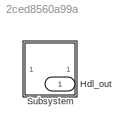
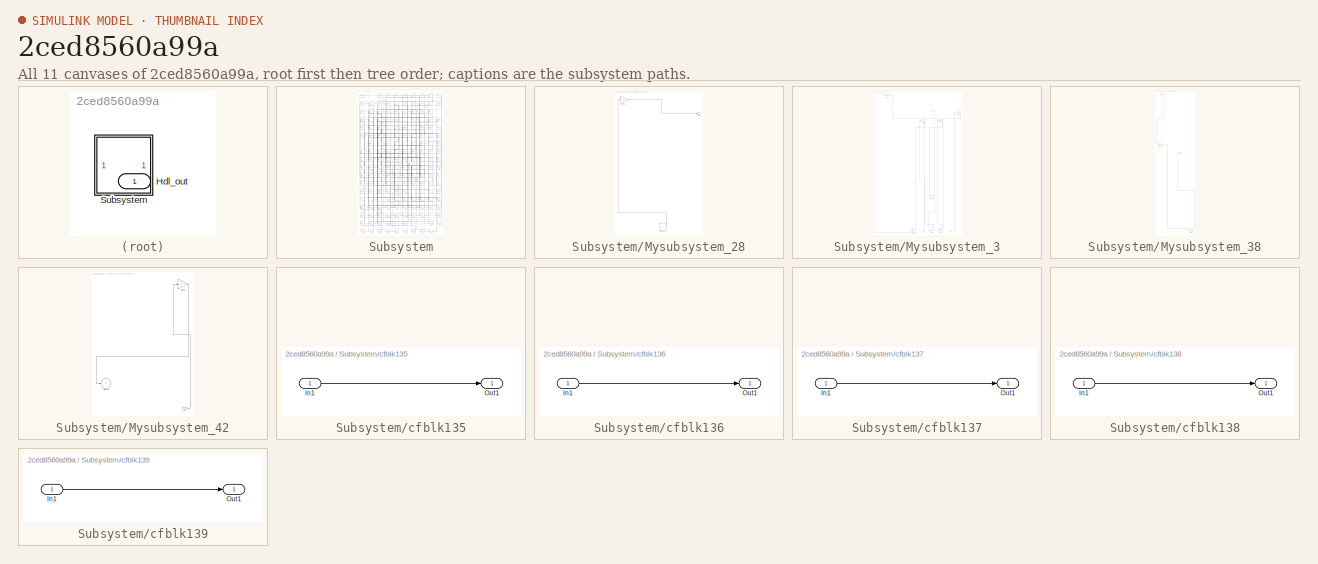
[diagram: thumbnail index - all 11 canvases of the model, root first then tree order]
MODEL slx_2ced8560a99a
KIND model
CONFIG AbsTol = auto
CONFIG EnableMultiTasking = off
CONFIG FixedStep = auto
CONFIG MaxStep = auto
CONFIG MinStep = auto
CONFIG RelTol = 1e-3
CONFIG SampleTimeConstraint = Unconstrained
CONFIG SolverName = VariableStepAuto
CONFIG StartTime = 0.0
CONFIG StopTime = 10.0
BLOCK [Outport] Hdl_out
  OutDataTypeStr = uint8
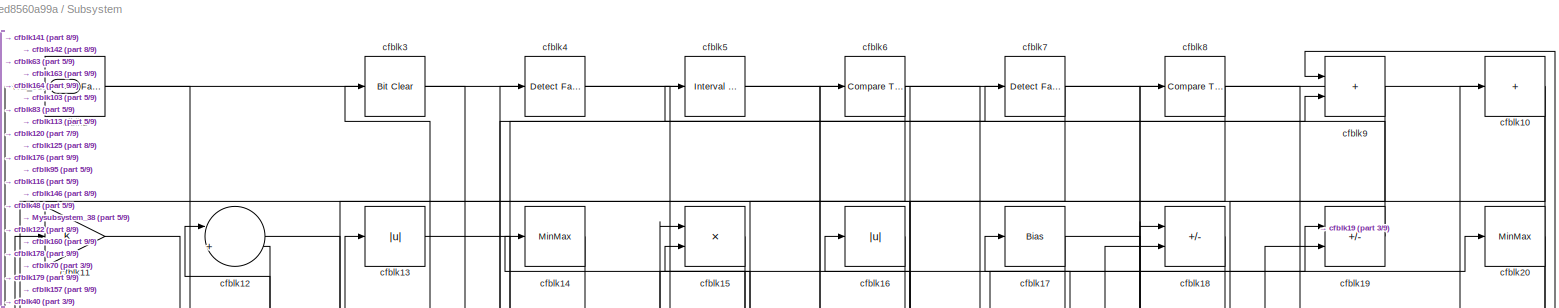
[diagram: Subsystem - part 1/9, full width, top band]
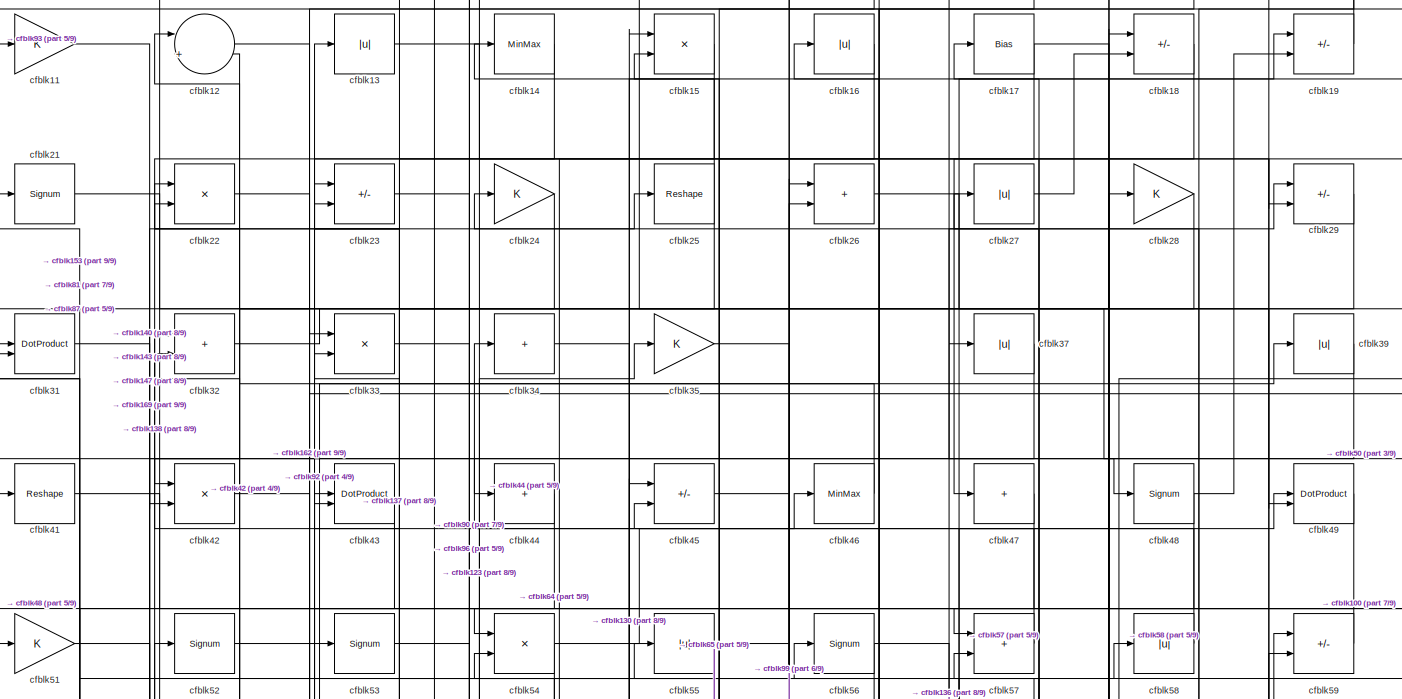
[diagram: Subsystem - part 2/9, full width, top band]
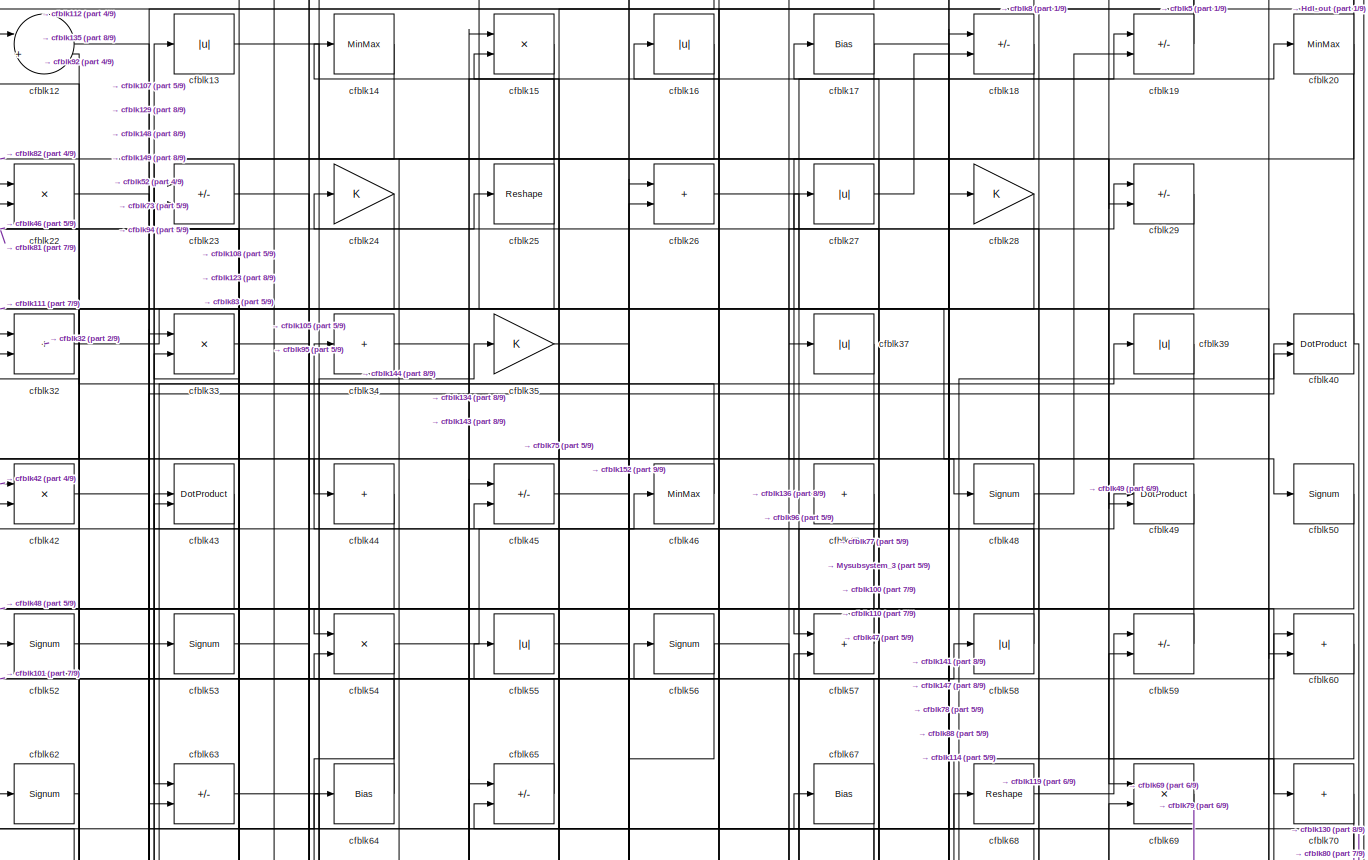
[diagram: Subsystem - part 3/9, full width, top band]
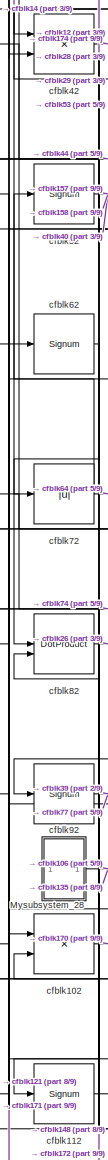
[diagram: Subsystem - part 4/9, middle left region]
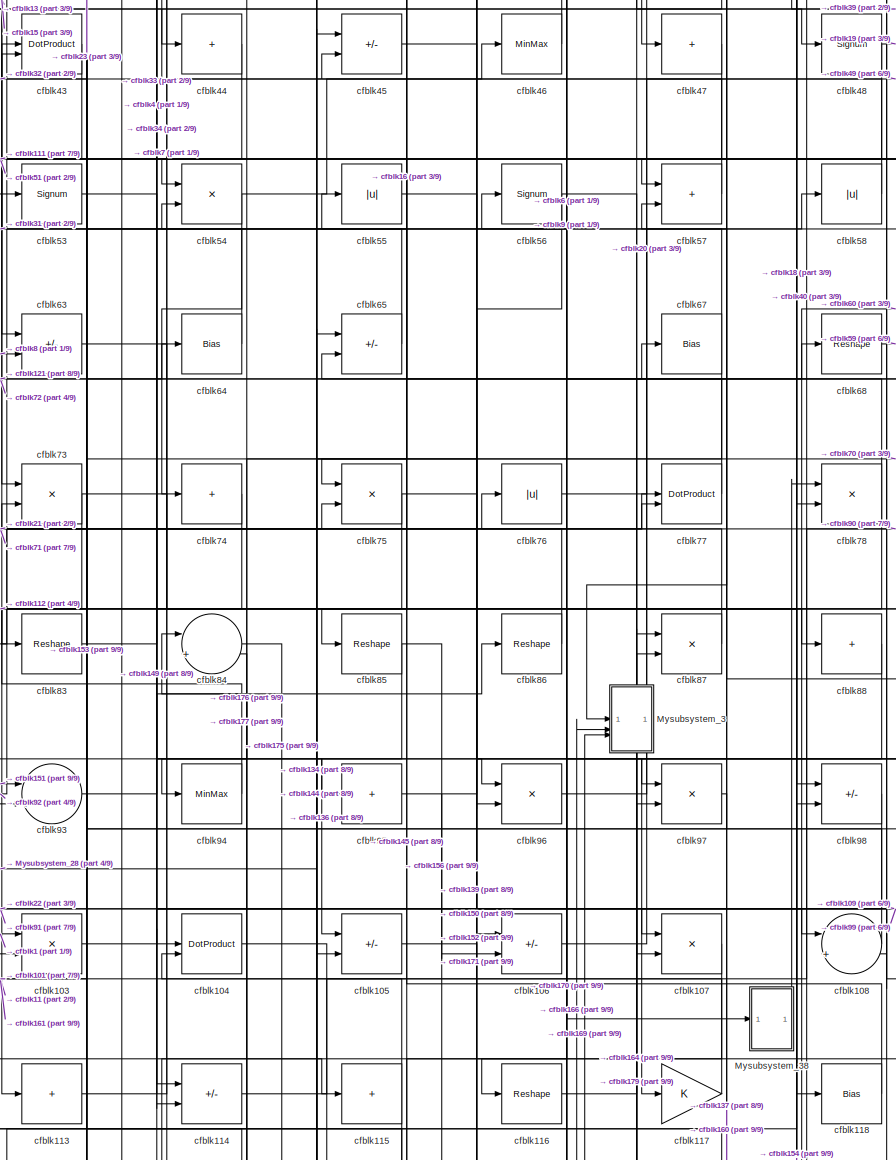
[diagram: Subsystem - part 5/9, central region]
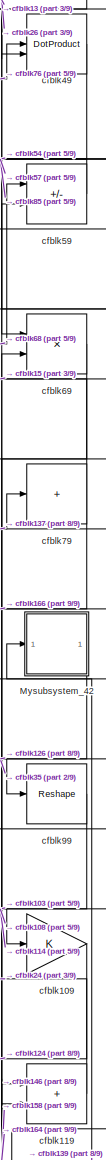
[diagram: Subsystem - part 6/9, middle right region]
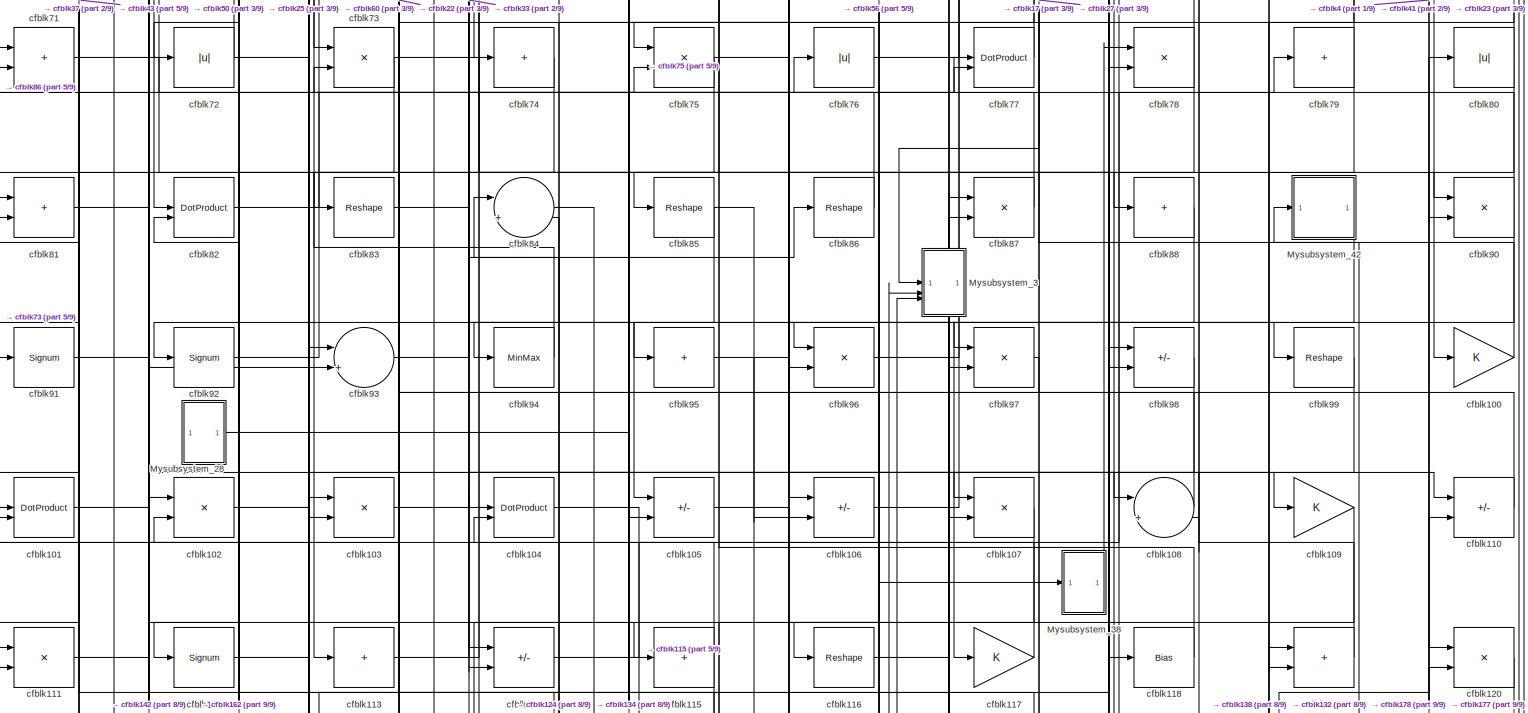
[diagram: Subsystem - part 7/9, full width, middle band]
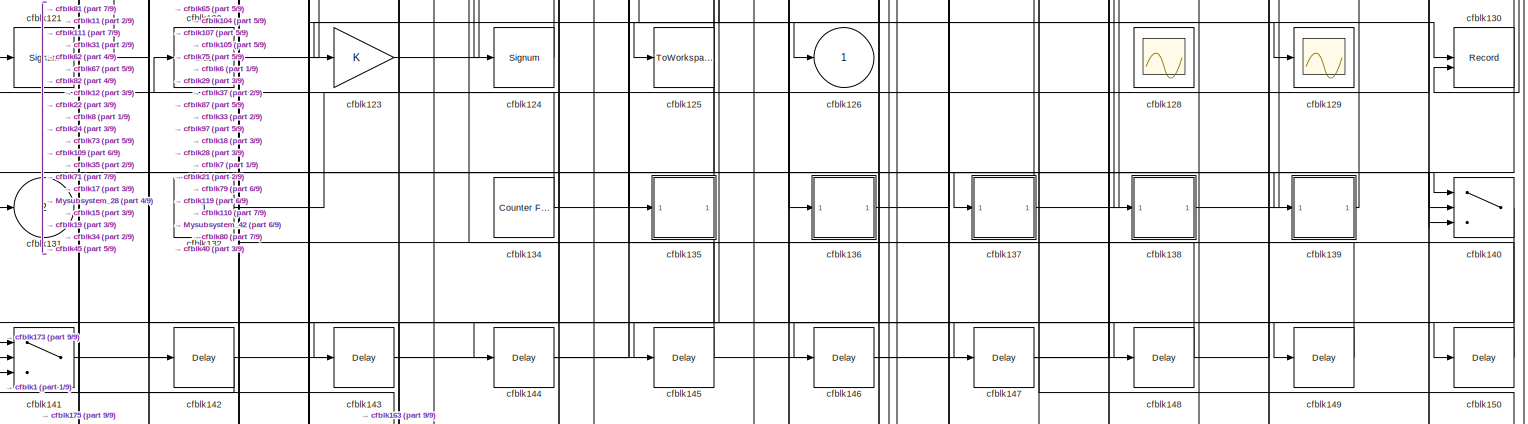
[diagram: Subsystem - part 8/9, full width, bottom band]
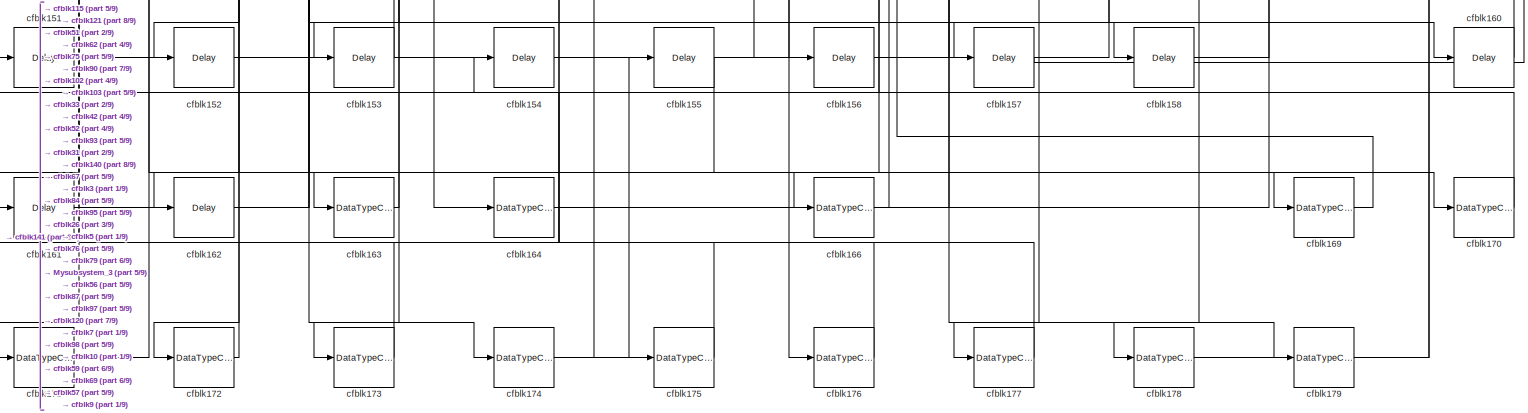
[diagram: Subsystem - part 9/9, full width, bottom band]
BLOCK [SubSystem] Subsystem
BLOCK [Outport] Subsystem/Hdl_out
  OutDataTypeStr = uint8
  Port = 3
BLOCK [SubSystem] Subsystem/Mysubsystem_28
  RTWFcnName = Mysubsystem_28
  RTWFcnNameOpts = User specified
  RTWFileNameOpts = Use function name
  RTWSystemCode = Reusable function
  TreatAsAtomicUnit = on
BLOCK [Outport] Subsystem/Mysubsystem_28/Out1
BLOCK [Constant] Subsystem/Mysubsystem_28/cfblk133
  SampleTime = -1
BLOCK [Gain] Subsystem/Mysubsystem_28/cfblk61
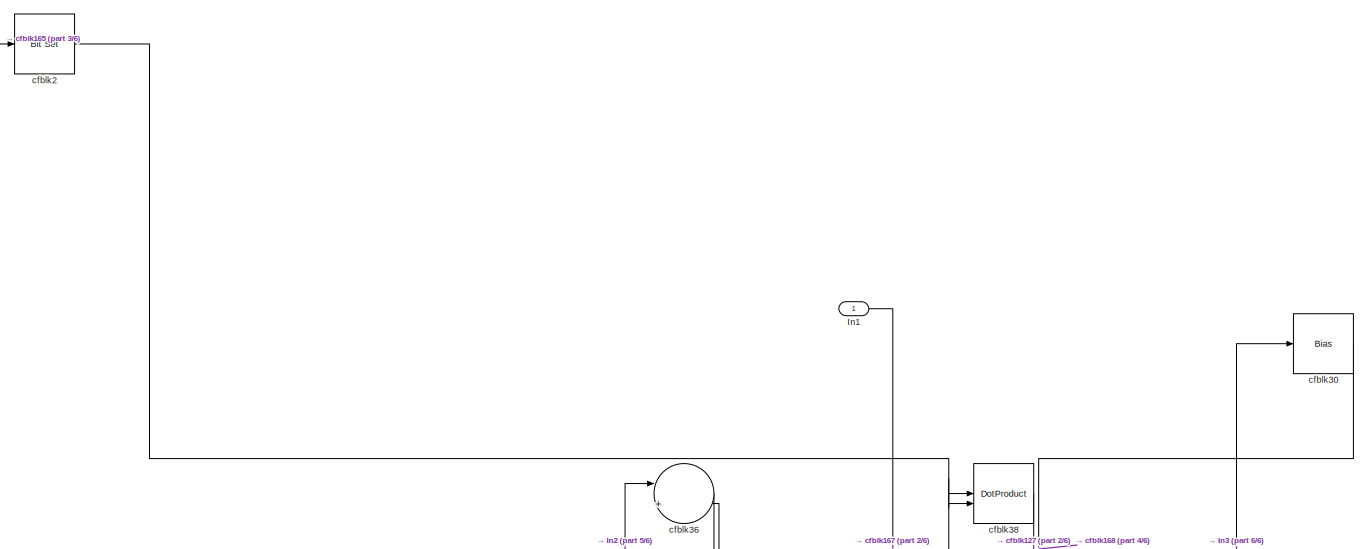
[diagram: Subsystem/Mysubsystem_3 - part 1/6, full width, top band]
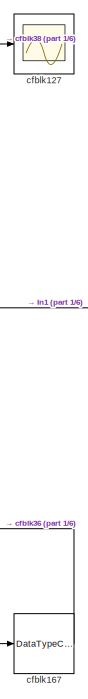
[diagram: Subsystem/Mysubsystem_3 - part 2/6, bottom center region]
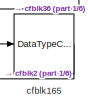
[diagram: Subsystem/Mysubsystem_3 - part 3/6, bottom center region]
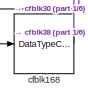
[diagram: Subsystem/Mysubsystem_3 - part 4/6, bottom right region]
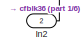
[diagram: Subsystem/Mysubsystem_3 - part 5/6, bottom center region]
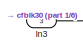
[diagram: Subsystem/Mysubsystem_3 - part 6/6, bottom right region]
BLOCK [SubSystem] Subsystem/Mysubsystem_3
  RTWFcnName = Mysubsystem_3
  RTWFcnNameOpts = User specified
  RTWFileNameOpts = Use function name
  RTWSystemCode = Reusable function
  TreatAsAtomicUnit = on
BLOCK [Inport] Subsystem/Mysubsystem_3/In1
BLOCK [Inport] Subsystem/Mysubsystem_3/In2
  Port = 2
BLOCK [Inport] Subsystem/Mysubsystem_3/In3
  Port = 3
BLOCK [Scope] Subsystem/Mysubsystem_3/cfblk127
  Floating = off
  NumInputPorts = 1
  ScopeSpecificationString = Simulink.scopes.TimeScopeBlockCfg('CurrentConfiguration', extmgr.ConfigurationSet(extmgr.Configuration('Core','General UI',true),extmgr.Configuration('Core','Source UI',true),extmgr.Configuration('Sources','WiredSimulink',true,'DataLoggingVariableName','ScopeData2','DataLoggingSaveFormat','Array','DataLoggingLimitDataPoints',true,'DataLoggingDecimation','1'),extmgr.Configuration('Visuals','Time Do...<+868ch>
BLOCK [DataTypeConversion] Subsystem/Mysubsystem_3/cfblk165
  OutDataTypeStr = uint8
  RndMeth = Floor
  SaturateOnIntegerOverflow = off
BLOCK [DataTypeConversion] Subsystem/Mysubsystem_3/cfblk167
  OutDataTypeStr = uint8
  RndMeth = Floor
  SaturateOnIntegerOverflow = off
BLOCK [DataTypeConversion] Subsystem/Mysubsystem_3/cfblk168
  OutDataTypeStr = uint8
  RndMeth = Floor
  SaturateOnIntegerOverflow = off
BLOCK [Reference] Subsystem/Mysubsystem_3/cfblk2  REF=simulink/Logic and Bit
Operations/Bit Set
  LibrarySourceBlock = hdlsllib/Logic and Bit\nOperations/Bit Set
  SourceBlock = simulink/Logic and Bit\nOperations/Bit Set
  SourceType = Bit Set
BLOCK [Bias] Subsystem/Mysubsystem_3/cfblk30
  Bias = 0.0
  SaturateOnIntegerOverflow = off
BLOCK [Sum] Subsystem/Mysubsystem_3/cfblk36
  Inputs = |++
BLOCK [DotProduct] Subsystem/Mysubsystem_3/cfblk38
  OutDataTypeStr = Inherit: Inherit via internal rule
BLOCK [SubSystem] Subsystem/Mysubsystem_38
  RTWFcnName = Mysubsystem_38
  RTWFcnNameOpts = User specified
  RTWFileNameOpts = Use function name
  RTWSystemCode = Reusable function
  TreatAsAtomicUnit = on
BLOCK [Inport] Subsystem/Mysubsystem_38/In1
BLOCK [Outport] Subsystem/Mysubsystem_38/Out1
BLOCK [Delay] Subsystem/Mysubsystem_38/cfblk159
  InputPortMap = u0
  SampleTime = 1
BLOCK [MinMax] Subsystem/Mysubsystem_38/cfblk66
BLOCK [SubSystem] Subsystem/Mysubsystem_42
  RTWFcnName = Mysubsystem_42
  RTWFcnNameOpts = User specified
  RTWFileNameOpts = Use function name
  RTWSystemCode = Reusable function
  TreatAsAtomicUnit = on
BLOCK [Inport] Subsystem/Mysubsystem_42/In1
BLOCK [Outport] Subsystem/Mysubsystem_42/cfblk126
  VectorParamsAs1DForOutWhenUnconnected = off
BLOCK [Gain] Subsystem/Mysubsystem_42/cfblk89
BLOCK [Reference] Subsystem/cfblk1  REF=hdlsllib/Logic and Bit
Operations/Detect Fall
Nonpositive
  SourceBlock = hdlsllib/Logic and Bit\nOperations/Detect Fall\nNonpositive
  SourceType = Detect Fall Nonpositive
BLOCK [Sum] Subsystem/cfblk10
  IconShape = rectangular
  Inputs = +
  OutDataTypeStr = uint8
BLOCK [Gain] Subsystem/cfblk100
  OutDataTypeStr = uint8
BLOCK [DotProduct] Subsystem/cfblk101
  OutDataTypeStr = uint8
BLOCK [Product] Subsystem/cfblk102
  Inputs = */
  OutDataTypeStr = uint8
  RndMeth = Zero
  SaturateOnIntegerOverflow = on
BLOCK [Product] Subsystem/cfblk103
  Inputs = */
  OutDataTypeStr = uint8
  RndMeth = Zero
  SaturateOnIntegerOverflow = on
BLOCK [DotProduct] Subsystem/cfblk104
  OutDataTypeStr = uint8
BLOCK [Sum] Subsystem/cfblk105
  IconShape = rectangular
  Inputs = +-
  OutDataTypeStr = uint8
BLOCK [Sum] Subsystem/cfblk106
  IconShape = rectangular
  Inputs = +-
  OutDataTypeStr = uint8
BLOCK [Product] Subsystem/cfblk107
  Inputs = */
  OutDataTypeStr = uint8
  RndMeth = Zero
  SaturateOnIntegerOverflow = on
BLOCK [Sum] Subsystem/cfblk108
  Inputs = |++
  OutDataTypeStr = uint8
BLOCK [Gain] Subsystem/cfblk109
  OutDataTypeStr = uint8
BLOCK [Gain] Subsystem/cfblk11
  OutDataTypeStr = uint8
BLOCK [Sum] Subsystem/cfblk110
  IconShape = rectangular
  Inputs = +-
  OutDataTypeStr = uint8
BLOCK [Product] Subsystem/cfblk111
  Inputs = */
  OutDataTypeStr = uint8
  RndMeth = Zero
  SaturateOnIntegerOverflow = on
BLOCK [Signum] Subsystem/cfblk112
BLOCK [Sum] Subsystem/cfblk113
  IconShape = rectangular
  Inputs = +
  OutDataTypeStr = uint8
BLOCK [Sum] Subsystem/cfblk114
  IconShape = rectangular
  Inputs = +-
  OutDataTypeStr = uint8
BLOCK [Sum] Subsystem/cfblk115
  IconShape = rectangular
  Inputs = +
  OutDataTypeStr = uint8
BLOCK [Reshape] Subsystem/cfblk116
BLOCK [Gain] Subsystem/cfblk117
  OutDataTypeStr = uint8
BLOCK [Bias] Subsystem/cfblk118
  Bias = 0.0
  SaturateOnIntegerOverflow = off
BLOCK [Sum] Subsystem/cfblk119
  IconShape = rectangular
  OutDataTypeStr = uint8
BLOCK [Sum] Subsystem/cfblk12
  Inputs = |++
  OutDataTypeStr = uint8
BLOCK [Product] Subsystem/cfblk120
  Inputs = */
  OutDataTypeStr = uint8
  RndMeth = Zero
  SaturateOnIntegerOverflow = on
BLOCK [Signum] Subsystem/cfblk121
BLOCK [Bias] Subsystem/cfblk122
  Bias = 0.0
  SaturateOnIntegerOverflow = off
BLOCK [Gain] Subsystem/cfblk123
  OutDataTypeStr = uint8
BLOCK [Signum] Subsystem/cfblk124
BLOCK [ToWorkspace] Subsystem/cfblk125
  MaxDataPoints = inf
  SampleTime = -1
  SaveFormat = Timeseries
  VariableName = simout
BLOCK [Outport] Subsystem/cfblk126
  OutDataTypeStr = uint8
  VectorParamsAs1DForOutWhenUnconnected = off
BLOCK [Scope] Subsystem/cfblk128
  Floating = on
  NumInputPorts = 1
  ScopeSpecificationString = Simulink.scopes.TimeScopeBlockCfg('CurrentConfiguration', extmgr.ConfigurationSet(extmgr.Configuration('Core','General UI',true,'FigureColor',[0.156862745098039 0.156862745098039 0.156862745098039]),extmgr.Configuration('Core','Source UI',true),extmgr.Configuration('Sources','WiredSimulink',true,'DataLoggingVariableName','ScopeData1','DataLoggingSaveFormat','StructureWithTime','DataLoggingLimitDat...<+2713ch>
BLOCK [Scope] Subsystem/cfblk129
  Floating = off
  NumInputPorts = 1
  ScopeSpecificationString = Simulink.scopes.TimeScopeBlockCfg('CurrentConfiguration', extmgr.ConfigurationSet(extmgr.Configuration('Core','General UI',true),extmgr.Configuration('Core','Source UI',true),extmgr.Configuration('Sources','WiredSimulink',true,'DataLoggingVariableName','ScopeData2','DataLoggingSaveFormat','Array','DataLoggingLimitDataPoints',true,'DataLoggingDecimation','1'),extmgr.Configuration('Visuals','Time Do...<+868ch>
BLOCK [Abs] Subsystem/cfblk13
  OutDataTypeStr = uint8
  SaturateOnIntegerOverflow = off
BLOCK [Record] Subsystem/cfblk130
  CompatibilityTag = XY
  FileSettingsInternal = {"entries":[{"content":{"excelSettings":{"content":{},"type":"Streamout.ExcelSettings"}},"type":"Streamout.FileSettingStorage","uuid":""}],"packageUris":["http:\/\/schema.mathworks.com\/mf0\/streamout_blocks\/R2020a"],"version":"1.0"}
  Layout = [1 1]
  SignalsInternal = {"entries":[{"content":{"signals":[{"content":{"blockPath":[],"dimensions":[1],"domain":"","lineColor":"#a2142f","plots":[1],"port":1,"signalID":52189,"signalName":"cfblk34"},"type":"RecordBlkView.Signal","uuid":""},{"content":{"blockPath":[],"dimensions":[1],"domain":"","lineColor":"#139fff","plots":[1],"port":2,"signalID":52192,"signalName":"cfblk40"},"type":"RecordBlkView.Signal","uuid":""}]},"...<+142ch>
  VisualizationBindings = {"xyplotplugin":{"info":[{"series":[{"bindingParametersList":[{"parameter":"X-Axis","signalID":52189,"signalName":"cfblk34"},{"parameter":"Y-Axis","signalID":52192,"signalName":"cfblk40"}],"seriesID":1677}],"subplotID":1}]}}
  st = -1
BLOCK [Outport] Subsystem/cfblk131
  OutDataTypeStr = uint8
  Port = 2
  VectorParamsAs1DForOutWhenUnconnected = off
BLOCK [Constant] Subsystem/cfblk132
  OutDataTypeStr = uint8
  SampleTime = -1
BLOCK [Reference] Subsystem/cfblk134  REF=hdlsllib/Sources/Counter
Free-Running
  SourceBlock = hdlsllib/Sources/Counter\nFree-Running
  SourceType = Counter Free-Running
BLOCK [SubSystem] Subsystem/cfblk135
  LibrarySourceBlock = hdlsllib/Ports &\nSubsystems/Subsystem
BLOCK [Inport] Subsystem/cfblk135/In1
BLOCK [Outport] Subsystem/cfblk135/Out1
BLOCK [SubSystem] Subsystem/cfblk136
  LibrarySourceBlock = hdlsllib/Ports &\nSubsystems/Subsystem
BLOCK [Inport] Subsystem/cfblk136/In1
BLOCK [Outport] Subsystem/cfblk136/Out1
BLOCK [SubSystem] Subsystem/cfblk137
  LibrarySourceBlock = hdlsllib/Ports &\nSubsystems/Subsystem
BLOCK [Inport] Subsystem/cfblk137/In1
BLOCK [Outport] Subsystem/cfblk137/Out1
BLOCK [SubSystem] Subsystem/cfblk138
  LibrarySourceBlock = hdlsllib/Ports &\nSubsystems/Subsystem
BLOCK [Inport] Subsystem/cfblk138/In1
BLOCK [Outport] Subsystem/cfblk138/Out1
BLOCK [SubSystem] Subsystem/cfblk139
  LibrarySourceBlock = hdlsllib/Ports &\nSubsystems/Subsystem
BLOCK [Inport] Subsystem/cfblk139/In1
BLOCK [Outport] Subsystem/cfblk139/Out1
BLOCK [MinMax] Subsystem/cfblk14
  OutDataTypeStr = uint8
BLOCK [Switch] Subsystem/cfblk140
  InputSameDT = off
  OutDataTypeStr = uint8
  SaturateOnIntegerOverflow = off
BLOCK [Switch] Subsystem/cfblk141
  InputSameDT = off
  OutDataTypeStr = uint8
  SaturateOnIntegerOverflow = off
BLOCK [Delay] Subsystem/cfblk142
  InputPortMap = u0
  SampleTime = 1
BLOCK [Delay] Subsystem/cfblk143
  InputPortMap = u0
  SampleTime = 1
BLOCK [Delay] Subsystem/cfblk144
  InputPortMap = u0
  SampleTime = 1
BLOCK [Delay] Subsystem/cfblk145
  InputPortMap = u0
  SampleTime = 1
BLOCK [Delay] Subsystem/cfblk146
  InputPortMap = u0
  SampleTime = 1
BLOCK [Delay] Subsystem/cfblk147
  InputPortMap = u0
  SampleTime = 1
BLOCK [Delay] Subsystem/cfblk148
  InputPortMap = u0
  SampleTime = 1
BLOCK [Delay] Subsystem/cfblk149
  InputPortMap = u0
  SampleTime = 1
BLOCK [Product] Subsystem/cfblk15
  Inputs = */
  OutDataTypeStr = uint8
  RndMeth = Zero
  SaturateOnIntegerOverflow = on
BLOCK [Delay] Subsystem/cfblk150
  InputPortMap = u0
  SampleTime = 1
BLOCK [Delay] Subsystem/cfblk151
  InputPortMap = u0
  SampleTime = 1
BLOCK [Delay] Subsystem/cfblk152
  InputPortMap = u0
  SampleTime = 1
BLOCK [Delay] Subsystem/cfblk153
  InputPortMap = u0
  SampleTime = 1
BLOCK [Delay] Subsystem/cfblk154
  InputPortMap = u0
  SampleTime = 1
BLOCK [Delay] Subsystem/cfblk155
  InputPortMap = u0
  SampleTime = 1
BLOCK [Delay] Subsystem/cfblk156
  InputPortMap = u0
  SampleTime = 1
BLOCK [Delay] Subsystem/cfblk157
  InputPortMap = u0
  SampleTime = 1
BLOCK [Delay] Subsystem/cfblk158
  InputPortMap = u0
  SampleTime = 1
BLOCK [Abs] Subsystem/cfblk16
  OutDataTypeStr = uint8
  SaturateOnIntegerOverflow = off
BLOCK [Delay] Subsystem/cfblk160
  InputPortMap = u0
  SampleTime = 1
BLOCK [Delay] Subsystem/cfblk161
  InputPortMap = u0
  SampleTime = 1
BLOCK [Delay] Subsystem/cfblk162
  InputPortMap = u0
  SampleTime = 1
BLOCK [DataTypeConversion] Subsystem/cfblk163
  OutDataTypeStr = uint8
  RndMeth = Floor
  SaturateOnIntegerOverflow = off
BLOCK [DataTypeConversion] Subsystem/cfblk164
  OutDataTypeStr = uint8
  RndMeth = Floor
  SaturateOnIntegerOverflow = off
BLOCK [DataTypeConversion] Subsystem/cfblk166
  OutDataTypeStr = uint8
  RndMeth = Floor
  SaturateOnIntegerOverflow = off
BLOCK [DataTypeConversion] Subsystem/cfblk169
  OutDataTypeStr = uint8
  RndMeth = Floor
  SaturateOnIntegerOverflow = off
BLOCK [Bias] Subsystem/cfblk17
  Bias = 0.0
  SaturateOnIntegerOverflow = off
BLOCK [DataTypeConversion] Subsystem/cfblk170
  OutDataTypeStr = uint8
  RndMeth = Floor
  SaturateOnIntegerOverflow = off
BLOCK [DataTypeConversion] Subsystem/cfblk171
  OutDataTypeStr = uint8
  RndMeth = Floor
  SaturateOnIntegerOverflow = off
BLOCK [DataTypeConversion] Subsystem/cfblk172
  OutDataTypeStr = uint8
  RndMeth = Floor
  SaturateOnIntegerOverflow = off
BLOCK [DataTypeConversion] Subsystem/cfblk173
  OutDataTypeStr = uint8
  RndMeth = Floor
  SaturateOnIntegerOverflow = off
BLOCK [DataTypeConversion] Subsystem/cfblk174
  OutDataTypeStr = uint8
  RndMeth = Floor
  SaturateOnIntegerOverflow = off
BLOCK [DataTypeConversion] Subsystem/cfblk175
  OutDataTypeStr = uint8
  RndMeth = Floor
  SaturateOnIntegerOverflow = off
BLOCK [DataTypeConversion] Subsystem/cfblk176
  OutDataTypeStr = uint8
  RndMeth = Floor
  SaturateOnIntegerOverflow = off
BLOCK [DataTypeConversion] Subsystem/cfblk177
  OutDataTypeStr = uint8
  RndMeth = Floor
  SaturateOnIntegerOverflow = off
BLOCK [DataTypeConversion] Subsystem/cfblk178
  OutDataTypeStr = uint8
  RndMeth = Floor
  SaturateOnIntegerOverflow = off
BLOCK [DataTypeConversion] Subsystem/cfblk179
  OutDataTypeStr = uint8
  RndMeth = Floor
  SaturateOnIntegerOverflow = off
BLOCK [Sum] Subsystem/cfblk18
  IconShape = rectangular
  Inputs = +-
  OutDataTypeStr = uint8
BLOCK [Sum] Subsystem/cfblk19
  IconShape = rectangular
  Inputs = +-
  OutDataTypeStr = uint8
BLOCK [MinMax] Subsystem/cfblk20
  OutDataTypeStr = uint8
BLOCK [Signum] Subsystem/cfblk21
BLOCK [Product] Subsystem/cfblk22
  Inputs = */
  OutDataTypeStr = uint8
  RndMeth = Zero
  SaturateOnIntegerOverflow = on
BLOCK [Sum] Subsystem/cfblk23
  IconShape = rectangular
  Inputs = +-
  OutDataTypeStr = uint8
BLOCK [Gain] Subsystem/cfblk24
  OutDataTypeStr = uint8
BLOCK [Reshape] Subsystem/cfblk25
BLOCK [Sum] Subsystem/cfblk26
  IconShape = rectangular
  OutDataTypeStr = uint8
BLOCK [Abs] Subsystem/cfblk27
  OutDataTypeStr = uint8
  SaturateOnIntegerOverflow = off
BLOCK [Gain] Subsystem/cfblk28
  OutDataTypeStr = uint8
BLOCK [Sum] Subsystem/cfblk29
  IconShape = rectangular
  Inputs = +-
  OutDataTypeStr = uint8
BLOCK [Reference] Subsystem/cfblk3  REF=simulink/Logic and Bit
Operations/Bit Clear
  LibrarySourceBlock = hdlsllib/Logic and Bit\nOperations/Bit Clear
  SourceBlock = simulink/Logic and Bit\nOperations/Bit Clear
  SourceType = Bit Clear
BLOCK [DotProduct] Subsystem/cfblk31
  OutDataTypeStr = uint8
BLOCK [Sum] Subsystem/cfblk32
  IconShape = rectangular
  OutDataTypeStr = uint8
BLOCK [Product] Subsystem/cfblk33
  Inputs = */
  OutDataTypeStr = uint8
  RndMeth = Zero
  SaturateOnIntegerOverflow = on
BLOCK [Sum] Subsystem/cfblk34
  IconShape = rectangular
  Inputs = +
  OutDataTypeStr = uint8
BLOCK [Gain] Subsystem/cfblk35
  OutDataTypeStr = uint8
BLOCK [Abs] Subsystem/cfblk37
  OutDataTypeStr = uint8
  SaturateOnIntegerOverflow = off
BLOCK [Abs] Subsystem/cfblk39
  OutDataTypeStr = uint8
  SaturateOnIntegerOverflow = off
BLOCK [Reference] Subsystem/cfblk4  REF=hdlsllib/Logic and Bit
Operations/Detect Fall
Negative
  SourceBlock = hdlsllib/Logic and Bit\nOperations/Detect Fall\nNegative
  SourceType = Detect Fall Negative
BLOCK [DotProduct] Subsystem/cfblk40
  OutDataTypeStr = uint8
BLOCK [Reshape] Subsystem/cfblk41
BLOCK [Product] Subsystem/cfblk42
  Inputs = */
  OutDataTypeStr = uint8
  RndMeth = Zero
  SaturateOnIntegerOverflow = on
BLOCK [DotProduct] Subsystem/cfblk43
  OutDataTypeStr = uint8
BLOCK [Sum] Subsystem/cfblk44
  IconShape = rectangular
  Inputs = +
  OutDataTypeStr = uint8
BLOCK [Sum] Subsystem/cfblk45
  IconShape = rectangular
  Inputs = +-
  OutDataTypeStr = uint8
BLOCK [MinMax] Subsystem/cfblk46
  OutDataTypeStr = uint8
BLOCK [Sum] Subsystem/cfblk47
  IconShape = rectangular
  Inputs = +
  OutDataTypeStr = uint8
BLOCK [Signum] Subsystem/cfblk48
BLOCK [DotProduct] Subsystem/cfblk49
  OutDataTypeStr = uint8
BLOCK [Reference] Subsystem/cfblk5  REF=hdlsllib/Logic and Bit
Operations/Interval Test
  SourceBlock = hdlsllib/Logic and Bit\nOperations/Interval Test
  SourceType = Interval Test
BLOCK [Signum] Subsystem/cfblk50
BLOCK [Gain] Subsystem/cfblk51
  OutDataTypeStr = uint8
BLOCK [Signum] Subsystem/cfblk52
BLOCK [Signum] Subsystem/cfblk53
BLOCK [Product] Subsystem/cfblk54
  Inputs = */
  OutDataTypeStr = uint8
  RndMeth = Zero
  SaturateOnIntegerOverflow = on
BLOCK [Abs] Subsystem/cfblk55
  OutDataTypeStr = uint8
  SaturateOnIntegerOverflow = off
BLOCK [Signum] Subsystem/cfblk56
BLOCK [Sum] Subsystem/cfblk57
  IconShape = rectangular
  OutDataTypeStr = uint8
BLOCK [Abs] Subsystem/cfblk58
  OutDataTypeStr = uint8
  SaturateOnIntegerOverflow = off
BLOCK [Sum] Subsystem/cfblk59
  IconShape = rectangular
  Inputs = +-
  OutDataTypeStr = uint8
BLOCK [Reference] Subsystem/cfblk6  REF=hdlsllib/Logic and Bit
Operations/Compare
To Constant
  SourceBlock = hdlsllib/Logic and Bit\nOperations/Compare\nTo Constant
  SourceType = Compare To Constant
BLOCK [Sum] Subsystem/cfblk60
  IconShape = rectangular
  OutDataTypeStr = uint8
BLOCK [Signum] Subsystem/cfblk62
BLOCK [Sum] Subsystem/cfblk63
  IconShape = rectangular
  Inputs = +-
  OutDataTypeStr = uint8
BLOCK [Bias] Subsystem/cfblk64
  Bias = 0.0
  SaturateOnIntegerOverflow = off
BLOCK [Sum] Subsystem/cfblk65
  IconShape = rectangular
  Inputs = +-
  OutDataTypeStr = uint8
BLOCK [Bias] Subsystem/cfblk67
  Bias = 0.0
  SaturateOnIntegerOverflow = off
BLOCK [Reshape] Subsystem/cfblk68
BLOCK [Product] Subsystem/cfblk69
  Inputs = */
  OutDataTypeStr = uint8
  RndMeth = Zero
  SaturateOnIntegerOverflow = on
BLOCK [Reference] Subsystem/cfblk7  REF=hdlsllib/Logic and Bit
Operations/Detect Fall
Negative
  SourceBlock = hdlsllib/Logic and Bit\nOperations/Detect Fall\nNegative
  SourceType = Detect Fall Negative
BLOCK [Sum] Subsystem/cfblk70
  IconShape = rectangular
  Inputs = +
  OutDataTypeStr = uint8
BLOCK [Sum] Subsystem/cfblk71
  IconShape = rectangular
  OutDataTypeStr = uint8
BLOCK [Abs] Subsystem/cfblk72
  OutDataTypeStr = uint8
  SaturateOnIntegerOverflow = off
BLOCK [Product] Subsystem/cfblk73
  Inputs = */
  OutDataTypeStr = uint8
  RndMeth = Zero
  SaturateOnIntegerOverflow = on
BLOCK [Sum] Subsystem/cfblk74
  IconShape = rectangular
  Inputs = +
  OutDataTypeStr = uint8
BLOCK [Product] Subsystem/cfblk75
  Inputs = */
  OutDataTypeStr = uint8
  RndMeth = Zero
  SaturateOnIntegerOverflow = on
BLOCK [Abs] Subsystem/cfblk76
  OutDataTypeStr = uint8
  SaturateOnIntegerOverflow = off
BLOCK [DotProduct] Subsystem/cfblk77
  OutDataTypeStr = uint8
BLOCK [Product] Subsystem/cfblk78
  Inputs = */
  OutDataTypeStr = uint8
  RndMeth = Zero
  SaturateOnIntegerOverflow = on
BLOCK [Sum] Subsystem/cfblk79
  IconShape = rectangular
  Inputs = +
  OutDataTypeStr = uint8
BLOCK [Reference] Subsystem/cfblk8  REF=hdlsllib/Logic and Bit
Operations/Compare
To Constant
  SourceBlock = hdlsllib/Logic and Bit\nOperations/Compare\nTo Constant
  SourceType = Compare To Constant
BLOCK [Abs] Subsystem/cfblk80
  OutDataTypeStr = uint8
  SaturateOnIntegerOverflow = off
BLOCK [Sum] Subsystem/cfblk81
  IconShape = rectangular
  OutDataTypeStr = uint8
BLOCK [DotProduct] Subsystem/cfblk82
  OutDataTypeStr = uint8
BLOCK [Reshape] Subsystem/cfblk83
BLOCK [Sum] Subsystem/cfblk84
  Inputs = |++
  OutDataTypeStr = uint8
BLOCK [Reshape] Subsystem/cfblk85
BLOCK [Reshape] Subsystem/cfblk86
BLOCK [Product] Subsystem/cfblk87
  Inputs = */
  OutDataTypeStr = uint8
  RndMeth = Zero
  SaturateOnIntegerOverflow = on
BLOCK [Sum] Subsystem/cfblk88
  IconShape = rectangular
  Inputs = +
  OutDataTypeStr = uint8
BLOCK [Sum] Subsystem/cfblk9
  IconShape = rectangular
  OutDataTypeStr = uint8
BLOCK [Product] Subsystem/cfblk90
  Inputs = */
  OutDataTypeStr = uint8
  RndMeth = Zero
  SaturateOnIntegerOverflow = on
BLOCK [Signum] Subsystem/cfblk91
BLOCK [Signum] Subsystem/cfblk92
BLOCK [Sum] Subsystem/cfblk93
  Inputs = |++
  OutDataTypeStr = uint8
BLOCK [MinMax] Subsystem/cfblk94
  OutDataTypeStr = uint8
BLOCK [Sum] Subsystem/cfblk95
  IconShape = rectangular
  Inputs = +
  OutDataTypeStr = uint8
BLOCK [Product] Subsystem/cfblk96
  Inputs = */
  OutDataTypeStr = uint8
  RndMeth = Zero
  SaturateOnIntegerOverflow = on
BLOCK [Product] Subsystem/cfblk97
  Inputs = */
  OutDataTypeStr = uint8
  RndMeth = Zero
  SaturateOnIntegerOverflow = on
BLOCK [Sum] Subsystem/cfblk98
  IconShape = rectangular
  Inputs = +-
  OutDataTypeStr = uint8
BLOCK [Reshape] Subsystem/cfblk99
LINE Subsystem/Mysubsystem_28/cfblk133:1 -> Subsystem/Mysubsystem_28/cfblk61:1
LINE Subsystem/Mysubsystem_28/cfblk61:1 -> Subsystem/Mysubsystem_28/Out1:1
NET Subsystem/Mysubsystem_28:1 -> Subsystem/cfblk106:1, Subsystem/cfblk135:1
LINE Subsystem/Mysubsystem_3/In1:1 -> Subsystem/Mysubsystem_3/cfblk167:1
LINE Subsystem/Mysubsystem_3/In2:1 -> Subsystem/Mysubsystem_3/cfblk36:1
LINE Subsystem/Mysubsystem_3/In3:1 -> Subsystem/Mysubsystem_3/cfblk30:1
LINE Subsystem/Mysubsystem_3/cfblk165:1 -> Subsystem/Mysubsystem_3/cfblk2:1
LINE Subsystem/Mysubsystem_3/cfblk167:1 -> Subsystem/Mysubsystem_3/cfblk36:2
LINE Subsystem/Mysubsystem_3/cfblk168:1 -> Subsystem/Mysubsystem_3/cfblk38:1
LINE Subsystem/Mysubsystem_3/cfblk2:1 -> Subsystem/Mysubsystem_3/cfblk38:2
LINE Subsystem/Mysubsystem_3/cfblk30:1 -> Subsystem/Mysubsystem_3/cfblk168:1
LINE Subsystem/Mysubsystem_3/cfblk36:1 -> Subsystem/Mysubsystem_3/cfblk165:1
LINE Subsystem/Mysubsystem_3/cfblk38:1 -> Subsystem/Mysubsystem_3/cfblk127:1
LINE Subsystem/Mysubsystem_38/In1:1 -> Subsystem/Mysubsystem_38/cfblk66:1
LINE Subsystem/Mysubsystem_38/cfblk159:1 -> Subsystem/Mysubsystem_38/Out1:1
LINE Subsystem/Mysubsystem_38/cfblk66:1 -> Subsystem/Mysubsystem_38/cfblk159:1
LINE Subsystem/Mysubsystem_38:1 -> Subsystem/cfblk78:1
LINE Subsystem/Mysubsystem_42/In1:1 -> Subsystem/Mysubsystem_42/cfblk89:1
LINE Subsystem/Mysubsystem_42/cfblk89:1 -> Subsystem/Mysubsystem_42/cfblk126:1
LINE Subsystem/Mysubsystem_42:1 -> Subsystem/cfblk126:1
LINE Subsystem/cfblk100:1 -> Subsystem/cfblk17:1
LINE Subsystem/cfblk101:1 -> Subsystem/cfblk60:1
LINE Subsystem/cfblk102:1 -> Subsystem/cfblk170:1
NET Subsystem/cfblk103:1 -> Subsystem/cfblk109:1, Subsystem/cfblk9:2
LINE Subsystem/cfblk104:1 -> Subsystem/cfblk136:1
LINE Subsystem/cfblk105:1 -> Subsystem/cfblk150:1
LINE Subsystem/cfblk106:1 -> Subsystem/cfblk58:1
LINE Subsystem/cfblk107:1 -> Subsystem/cfblk145:1
LINE Subsystem/cfblk108:1 -> Subsystem/cfblk23:1
LINE Subsystem/cfblk109:1 -> Subsystem/cfblk124:1
LINE Subsystem/cfblk10:1 -> Subsystem/cfblk178:1
NET Subsystem/cfblk110:1 -> Subsystem/cfblk22:2, Subsystem/cfblk27:1
LINE Subsystem/cfblk111:1 -> Subsystem/cfblk142:1
NET Subsystem/cfblk112:1 -> Subsystem/cfblk12:1, Subsystem/cfblk53:1
NET Subsystem/cfblk113:1 -> Subsystem/cfblk77:1, Subsystem/cfblk7:1
LINE Subsystem/cfblk114:1 -> Subsystem/cfblk40:1
NET Subsystem/cfblk115:1 -> Subsystem/cfblk101:2, Subsystem/cfblk161:1
LINE Subsystem/cfblk116:1 -> Subsystem/cfblk68:1
LINE Subsystem/cfblk117:1 -> Subsystem/cfblk104:2
LINE Subsystem/cfblk118:1 -> Subsystem/cfblk65:2
LINE Subsystem/cfblk119:1 -> Subsystem/cfblk24:1
LINE Subsystem/cfblk11:1 -> Subsystem/cfblk147:1
LINE Subsystem/cfblk120:1 -> Subsystem/cfblk177:1
NET Subsystem/cfblk121:1 -> Subsystem/cfblk62:1, Subsystem/cfblk67:1
NET Subsystem/cfblk122:1 -> Subsystem/cfblk140:3, Subsystem/cfblk8:1
LINE Subsystem/cfblk123:1 -> Subsystem/cfblk35:1
LINE Subsystem/cfblk124:1 -> Subsystem/cfblk71:2
NET Subsystem/cfblk12:1 -> Subsystem/cfblk129:1, Subsystem/cfblk149:1
NET Subsystem/cfblk132:1 -> Subsystem/cfblk140:1, Subsystem/cfblk80:1
NET Subsystem/cfblk134:1 -> Subsystem/cfblk122:1, Subsystem/cfblk131:1, Subsystem/cfblk19:1, Subsystem/cfblk73:2, Subsystem/cfblk81:2
LINE Subsystem/cfblk135/In1:1 -> Subsystem/cfblk135/Out1:1
NET Subsystem/cfblk135:1 -> Subsystem/cfblk12:2, Subsystem/cfblk141:2
LINE Subsystem/cfblk136/In1:1 -> Subsystem/cfblk136/Out1:1
NET Subsystem/cfblk136:1 -> Subsystem/cfblk29:1, Subsystem/cfblk37:1
LINE Subsystem/cfblk137/In1:1 -> Subsystem/cfblk137/Out1:1
NET Subsystem/cfblk137:1 -> Subsystem/cfblk33:2, Subsystem/cfblk79:1
LINE Subsystem/cfblk138/In1:1 -> Subsystem/cfblk138/Out1:1
LINE Subsystem/cfblk138:1 -> Subsystem/cfblk110:2
LINE Subsystem/cfblk139/In1:1 -> Subsystem/cfblk139/Out1:1
LINE Subsystem/cfblk139:1 -> Subsystem/Mysubsystem_42:1
LINE Subsystem/cfblk13:1 -> Subsystem/cfblk49:2
LINE Subsystem/cfblk140:1 -> Subsystem/cfblk163:1
LINE Subsystem/cfblk141:1 -> Subsystem/cfblk28:1
LINE Subsystem/cfblk142:1 -> Subsystem/cfblk1:1
LINE Subsystem/cfblk143:1 -> Subsystem/cfblk15:1
LINE Subsystem/cfblk144:1 -> Subsystem/cfblk45:1
LINE Subsystem/cfblk145:1 -> Subsystem/cfblk65:1
LINE Subsystem/cfblk146:1 -> Subsystem/cfblk119:1
LINE Subsystem/cfblk147:1 -> Subsystem/cfblk18:1
LINE Subsystem/cfblk148:1 -> Subsystem/cfblk82:2
LINE Subsystem/cfblk149:1 -> Subsystem/cfblk104:1
LINE Subsystem/cfblk14:1 -> Subsystem/cfblk82:1
LINE Subsystem/cfblk150:1 -> Subsystem/cfblk87:1
LINE Subsystem/cfblk151:1 -> Subsystem/cfblk93:1
LINE Subsystem/cfblk152:1 -> Subsystem/cfblk26:2
LINE Subsystem/cfblk153:1 -> Subsystem/cfblk31:2
LINE Subsystem/cfblk154:1 -> Subsystem/cfblk98:2
LINE Subsystem/cfblk155:1 -> Subsystem/cfblk173:1
LINE Subsystem/cfblk156:1 -> Subsystem/cfblk97:2
LINE Subsystem/cfblk157:1 -> Subsystem/cfblk9:1
LINE Subsystem/cfblk158:1 -> Subsystem/cfblk59:2
LINE Subsystem/cfblk15:1 -> Subsystem/cfblk73:1
LINE Subsystem/cfblk160:1 -> Subsystem/cfblk57:2
LINE Subsystem/cfblk161:1 -> Subsystem/cfblk103:2
LINE Subsystem/cfblk162:1 -> Subsystem/cfblk33:1
LINE Subsystem/cfblk163:1 -> Subsystem/cfblk3:1
NET Subsystem/cfblk164:1 -> Subsystem/cfblk69:2, Subsystem/cfblk87:2
LINE Subsystem/cfblk166:1 -> Subsystem/Mysubsystem_3:2
LINE Subsystem/cfblk169:1 -> Subsystem/Mysubsystem_3:3
LINE Subsystem/cfblk16:1 -> Subsystem/cfblk75:1
NET Subsystem/cfblk170:1 -> Subsystem/cfblk151:1, Subsystem/cfblk76:1
LINE Subsystem/cfblk171:1 -> Subsystem/cfblk102:1
LINE Subsystem/cfblk172:1 -> Subsystem/cfblk102:2
LINE Subsystem/cfblk173:1 -> Subsystem/cfblk141:1
LINE Subsystem/cfblk174:1 -> Subsystem/cfblk155:1
NET Subsystem/cfblk175:1 -> Subsystem/cfblk121:1, Subsystem/cfblk154:1
LINE Subsystem/cfblk176:1 -> Subsystem/cfblk84:1
LINE Subsystem/cfblk177:1 -> Subsystem/cfblk84:2
LINE Subsystem/cfblk178:1 -> Subsystem/cfblk120:2
LINE Subsystem/cfblk179:1 -> Subsystem/cfblk10:1
NET Subsystem/cfblk17:1 -> Subsystem/cfblk144:1, Subsystem/cfblk60:2
NET Subsystem/cfblk18:1 -> Subsystem/Mysubsystem_3:1, Subsystem/cfblk47:1, Subsystem/cfblk78:2
LINE Subsystem/cfblk19:1 -> Subsystem/cfblk5:1
LINE Subsystem/cfblk1:1 -> Subsystem/cfblk103:1
NET Subsystem/cfblk20:1 -> Subsystem/cfblk29:2, Subsystem/cfblk83:1
LINE Subsystem/cfblk21:1 -> Subsystem/cfblk138:1
NET Subsystem/cfblk22:1 -> Subsystem/cfblk107:2, Subsystem/cfblk148:1
NET Subsystem/cfblk23:1 -> Subsystem/cfblk105:2, Subsystem/cfblk95:1
LINE Subsystem/cfblk24:1 -> Subsystem/cfblk123:1
NET Subsystem/cfblk25:1 -> Subsystem/cfblk111:2, Subsystem/cfblk14:1
LINE Subsystem/cfblk26:1 -> Subsystem/cfblk69:1
LINE Subsystem/cfblk27:1 -> Subsystem/cfblk18:2
LINE Subsystem/cfblk28:1 -> Subsystem/cfblk42:1
LINE Subsystem/cfblk29:1 -> Subsystem/cfblk92:1
NET Subsystem/cfblk31:1 -> Subsystem/cfblk140:2, Subsystem/cfblk143:1
LINE Subsystem/cfblk32:1 -> Subsystem/cfblk50:1
NET Subsystem/cfblk33:1 -> Subsystem/cfblk90:1, Subsystem/cfblk96:1
LINE Subsystem/cfblk34:1 -> Subsystem/cfblk130:1
LINE Subsystem/cfblk35:1 -> Subsystem/cfblk99:1
NET Subsystem/cfblk37:1 -> Subsystem/cfblk41:1, Subsystem/cfblk81:1
NET Subsystem/cfblk39:1 -> Subsystem/cfblk42:2, Subsystem/cfblk44:1
LINE Subsystem/cfblk3:1 -> Subsystem/cfblk164:1
NET Subsystem/cfblk40:1 -> Subsystem/Hdl_out:1, Subsystem/cfblk130:2
LINE Subsystem/cfblk41:1 -> Subsystem/cfblk100:1
LINE Subsystem/cfblk42:1 -> Subsystem/cfblk174:1
LINE Subsystem/cfblk43:1 -> Subsystem/cfblk111:1
LINE Subsystem/cfblk44:1 -> Subsystem/cfblk72:1
LINE Subsystem/cfblk45:1 -> Subsystem/cfblk97:1
LINE Subsystem/cfblk46:1 -> Subsystem/cfblk22:1
LINE Subsystem/cfblk47:1 -> Subsystem/cfblk63:1
NET Subsystem/cfblk48:1 -> Subsystem/cfblk19:2, Subsystem/cfblk51:1
NET Subsystem/cfblk49:1 -> Subsystem/cfblk54:1, Subsystem/cfblk85:1
LINE Subsystem/cfblk4:1 -> Subsystem/cfblk120:1
LINE Subsystem/cfblk50:1 -> Subsystem/cfblk101:1
NET Subsystem/cfblk51:1 -> Subsystem/cfblk169:1, Subsystem/cfblk93:2
NET Subsystem/cfblk52:1 -> Subsystem/cfblk157:1, Subsystem/cfblk158:1, Subsystem/cfblk40:2
LINE Subsystem/cfblk53:1 -> Subsystem/cfblk114:1
NET Subsystem/cfblk54:1 -> Subsystem/cfblk46:1, Subsystem/cfblk74:1
LINE Subsystem/cfblk55:1 -> Subsystem/cfblk108:1
NET Subsystem/cfblk56:1 -> Subsystem/cfblk179:1, Subsystem/cfblk54:2, Subsystem/cfblk96:2
NET Subsystem/cfblk57:1 -> Subsystem/cfblk34:1, Subsystem/cfblk45:2
LINE Subsystem/cfblk58:1 -> Subsystem/cfblk32:1
LINE Subsystem/cfblk59:1 -> Subsystem/cfblk57:1
LINE Subsystem/cfblk5:1 -> Subsystem/cfblk176:1
LINE Subsystem/cfblk60:1 -> Subsystem/cfblk88:1
LINE Subsystem/cfblk62:1 -> Subsystem/cfblk172:1
LINE Subsystem/cfblk63:1 -> Subsystem/cfblk98:1
LINE Subsystem/cfblk64:1 -> Subsystem/cfblk32:2
NET Subsystem/cfblk65:1 -> Subsystem/cfblk31:1, Subsystem/cfblk43:1
NET Subsystem/cfblk67:1 -> Subsystem/cfblk153:1, Subsystem/cfblk43:2
LINE Subsystem/cfblk68:1 -> Subsystem/cfblk59:1
LINE Subsystem/cfblk69:1 -> Subsystem/cfblk119:2
NET Subsystem/cfblk6:1 -> Subsystem/cfblk141:3, Subsystem/cfblk146:1, Subsystem/cfblk48:1
LINE Subsystem/cfblk70:1 -> Subsystem/cfblk94:1
LINE Subsystem/cfblk71:1 -> Subsystem/cfblk75:2
NET Subsystem/cfblk72:1 -> Subsystem/cfblk52:1, Subsystem/cfblk64:1
NET Subsystem/cfblk73:1 -> Subsystem/cfblk118:1, Subsystem/cfblk91:1
LINE Subsystem/cfblk74:1 -> Subsystem/cfblk112:1
NET Subsystem/cfblk75:1 -> Subsystem/cfblk139:1, Subsystem/cfblk152:1, Subsystem/cfblk171:1
LINE Subsystem/cfblk76:1 -> Subsystem/cfblk49:1
LINE Subsystem/cfblk77:1 -> Subsystem/cfblk16:1
NET Subsystem/cfblk78:1 -> Subsystem/cfblk113:1, Subsystem/cfblk55:1
NET Subsystem/cfblk79:1 -> Subsystem/cfblk15:2, Subsystem/cfblk166:1
NET Subsystem/cfblk7:1 -> Subsystem/Mysubsystem_38:1, Subsystem/cfblk125:1, Subsystem/cfblk160:1
NET Subsystem/cfblk80:1 -> Subsystem/cfblk23:2, Subsystem/cfblk90:2
LINE Subsystem/cfblk81:1 -> Subsystem/cfblk25:1
LINE Subsystem/cfblk82:1 -> Subsystem/cfblk26:1
LINE Subsystem/cfblk83:1 -> Subsystem/cfblk4:1
LINE Subsystem/cfblk84:1 -> Subsystem/cfblk175:1
NET Subsystem/cfblk85:1 -> Subsystem/cfblk105:1, Subsystem/cfblk106:2
LINE Subsystem/cfblk86:1 -> Subsystem/cfblk71:1
LINE Subsystem/cfblk87:1 -> Subsystem/cfblk21:1
LINE Subsystem/cfblk88:1 -> Subsystem/cfblk107:1
NET Subsystem/cfblk8:1 -> Subsystem/cfblk63:2, Subsystem/cfblk70:1
NET Subsystem/cfblk90:1 -> Subsystem/cfblk162:1, Subsystem/cfblk56:1
NET Subsystem/cfblk91:1 -> Subsystem/cfblk110:1, Subsystem/cfblk115:1
NET Subsystem/cfblk92:1 -> Subsystem/cfblk39:1, Subsystem/cfblk77:2
NET Subsystem/cfblk93:1 -> Subsystem/cfblk11:1, Subsystem/cfblk86:1
LINE Subsystem/cfblk94:1 -> Subsystem/cfblk13:1
NET Subsystem/cfblk95:1 -> Subsystem/cfblk156:1, Subsystem/cfblk6:1
LINE Subsystem/cfblk96:1 -> Subsystem/cfblk20:1
LINE Subsystem/cfblk97:1 -> Subsystem/cfblk137:1
LINE Subsystem/cfblk98:1 -> Subsystem/cfblk117:1
NET Subsystem/cfblk99:1 -> Subsystem/cfblk108:2, Subsystem/cfblk114:2
LINE Subsystem/cfblk9:1 -> Subsystem/cfblk116:1
note: NET lines group one-source signal fan-out (src -> all destinations, sorted); 1:1 wires keep LINE
